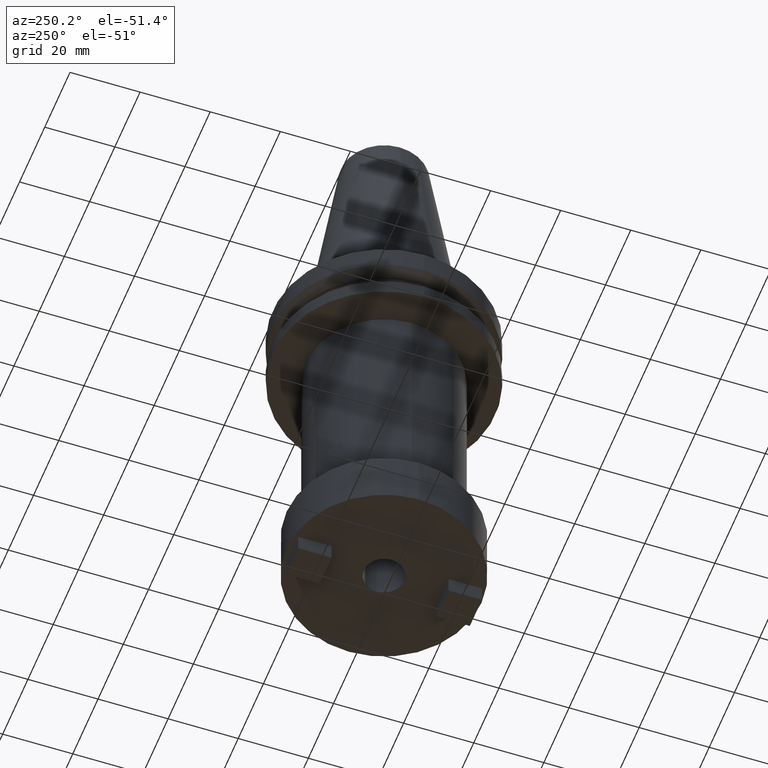
[diagram: clean part render]
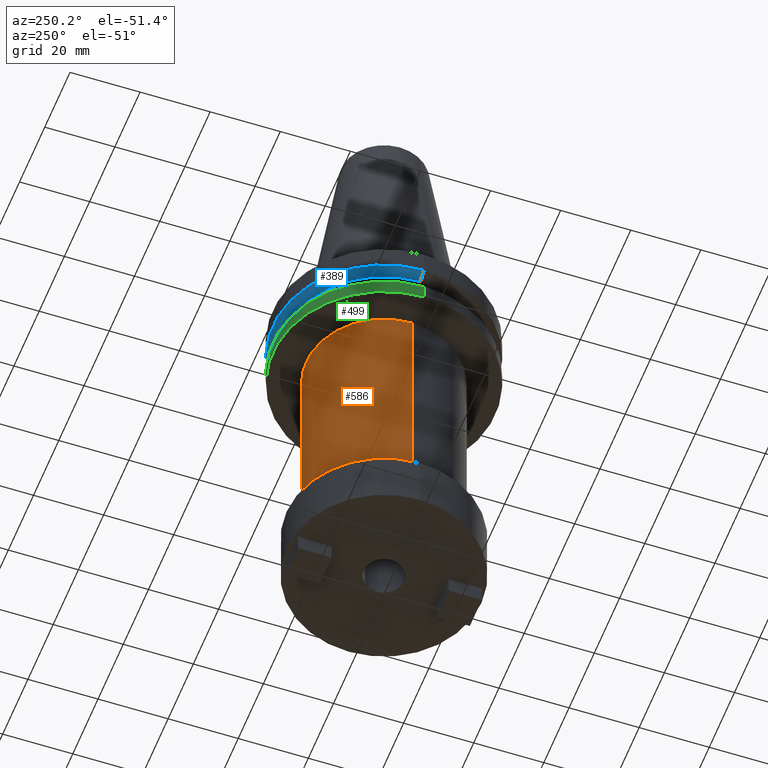
[diagram: same view with three faces highlighted in distinct colors, each labeled with its STEP entity id]
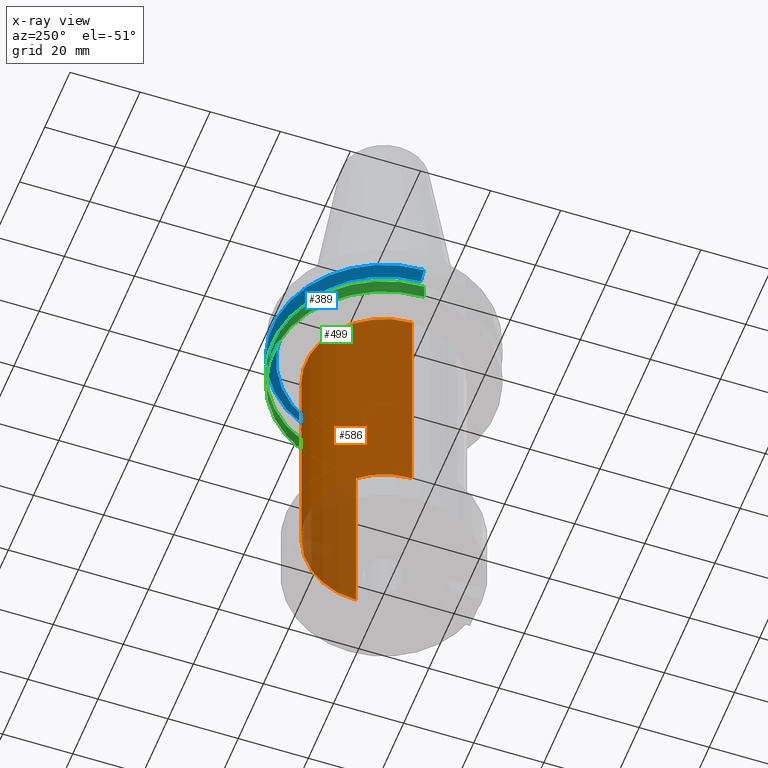
[diagram: x-ray of the same camera — body ghosted, the three highlighted faces saturated]
A machine part, auxiliary view with three faces highlighted in distinct colors.
The next image is the same camera in x-ray (body ghosted, the three faces saturated) — at least one of them is partly hidden behind the body in this view.
Their STEP definitions:

[orange] entity #586 — the highlighted cylindrical surface (partial cylindrical patch) has radius 22.225 mm, axis along (-0, -0, 1).
#17 = VERTEX_POINT ( 'NONE', #469 ) ;
#162 = EDGE_LOOP ( 'NONE', ( #192, #1071, #809, #560 ) ) ;
#179 = CIRCLE ( 'NONE', #1076, 22.22500000000000142 ) ;
#192 = ORIENTED_EDGE ( 'NONE', *, *, #556, .T. ) ;
#208 = EDGE_CURVE ( 'NONE', #1030, #864, #839, .T. ) ;
#230 = LINE ( 'NONE', #1072, #802 ) ;
#246 = CYLINDRICAL_SURFACE ( 'NONE', #280, 22.22500000000000142 ) ;
#280 = AXIS2_PLACEMENT_3D ( 'NONE', #418, #903, #909 ) ;
#318 = VERTEX_POINT ( 'NONE', #761 ) ;
#358 = CARTESIAN_POINT ( 'NONE',  ( 0.000000000000000000, 0.000000000000000000, -19.04999999999999716 ) ) ;
#418 = CARTESIAN_POINT ( 'NONE',  ( 0.000000000000000000, 0.000000000000000000, 68.25000000000000000 ) ) ;
#469 = CARTESIAN_POINT ( 'NONE',  ( 22.22500000000000142, 0.000000000000000000, -85.84999999999999432 ) ) ;
#539 = AXIS2_PLACEMENT_3D ( 'NONE', #358, #684, #853 ) ;
#541 = EDGE_CURVE ( 'NONE', #17, #1030, #230, .T. ) ;
#545 = DIRECTION ( 'NONE',  ( -0.000000000000000000, -0.000000000000000000, 1.000000000000000000 ) ) ;
#556 = EDGE_CURVE ( 'NONE', #17, #318, #179, .T. ) ;
#560 = ORIENTED_EDGE ( 'NONE', *, *, #541, .F. ) ;
#586 = ADVANCED_FACE ( 'NONE', ( #661 ), #246, .T. ) ;
#661 = FACE_OUTER_BOUND ( 'NONE', #162, .T. ) ;
#684 = DIRECTION ( 'NONE',  ( -0.000000000000000000, -0.000000000000000000, 1.000000000000000000 ) ) ;
#722 = CARTESIAN_POINT ( 'NONE',  ( -22.22500000000000142, 2.721777511104992849E-15, 68.25000000000000000 ) ) ;
#723 = VECTOR ( 'NONE', #545, 1000.000000000000000 ) ;
#726 = CARTESIAN_POINT ( 'NONE',  ( -22.22500000000000142, 2.721777511104992849E-15, -19.04999999999999716 ) ) ;
#732 = DIRECTION ( 'NONE',  ( -0.000000000000000000, -0.000000000000000000, 1.000000000000000000 ) ) ;
#745 = CARTESIAN_POINT ( 'NONE',  ( 0.000000000000000000, 0.000000000000000000, -85.84999999999999432 ) ) ;
#761 = CARTESIAN_POINT ( 'NONE',  ( -22.22500000000000142, 2.721777511104992849E-15, -85.84999999999999432 ) ) ;
#802 = VECTOR ( 'NONE', #1077, 1000.000000000000000 ) ;
#809 = ORIENTED_EDGE ( 'NONE', *, *, #208, .F. ) ;
#839 = CIRCLE ( 'NONE', #539, 22.22500000000000142 ) ;
#853 = DIRECTION ( 'NONE',  ( 1.000000000000000000, 0.000000000000000000, 0.000000000000000000 ) ) ;
#864 = VERTEX_POINT ( 'NONE', #726 ) ;
#869 = CARTESIAN_POINT ( 'NONE',  ( 22.22500000000000142, 0.000000000000000000, -19.04999999999999716 ) ) ;
#874 = LINE ( 'NONE', #722, #723 ) ;
#903 = DIRECTION ( 'NONE',  ( -0.000000000000000000, -0.000000000000000000, 1.000000000000000000 ) ) ;
#909 = DIRECTION ( 'NONE',  ( 1.000000000000000000, 0.000000000000000000, 0.000000000000000000 ) ) ;
#999 = DIRECTION ( 'NONE',  ( 1.000000000000000000, 0.000000000000000000, 0.000000000000000000 ) ) ;
#1000 = EDGE_CURVE ( 'NONE', #318, #864, #874, .T. ) ;
#1030 = VERTEX_POINT ( 'NONE', #869 ) ;
#1071 = ORIENTED_EDGE ( 'NONE', *, *, #1000, .T. ) ;
#1072 = CARTESIAN_POINT ( 'NONE',  ( 22.22500000000000142, 0.000000000000000000, 68.25000000000000000 ) ) ;
#1076 = AXIS2_PLACEMENT_3D ( 'NONE', #745, #732, #999 ) ;
#1077 = DIRECTION ( 'NONE',  ( -0.000000000000000000, -0.000000000000000000, 1.000000000000000000 ) ) ;

[blue] entity #389 — the highlighted conical surface has half-angle 60 deg.
#34 = DIRECTION ( 'NONE',  ( 1.000000000000000000, 0.000000000000000000, 0.000000000000000000 ) ) ;
#55 = CARTESIAN_POINT ( 'NONE',  ( -31.75000000000000000, 3.888253587292846476E-15, -7.605276606597335842 ) ) ;
#72 = VECTOR ( 'NONE', #433, 1000.000000000000000 ) ;
#99 = CARTESIAN_POINT ( 'NONE',  ( 28.97919780457007732, 0.000000000000000000, -9.205000000000005400 ) ) ;
#104 = ORIENTED_EDGE ( 'NONE', *, *, #594, .T. ) ;
#161 = DIRECTION ( 'NONE',  ( -0.000000000000000000, -0.000000000000000000, 1.000000000000000000 ) ) ;
#174 = LINE ( 'NONE', #518, #72 ) ;
#193 = CARTESIAN_POINT ( 'NONE',  ( 31.75000000000000000, 0.000000000000000000, -7.605276606597335842 ) ) ;
#204 = DIRECTION ( 'NONE',  ( 1.000000000000000000, 0.000000000000000000, 0.000000000000000000 ) ) ;
#277 = VERTEX_POINT ( 'NONE', #193 ) ;
#282 = LINE ( 'NONE', #614, #615 ) ;
#329 = ORIENTED_EDGE ( 'NONE', *, *, #877, .F. ) ;
#333 = AXIS2_PLACEMENT_3D ( 'NONE', #788, #451, #34 ) ;
#369 = AXIS2_PLACEMENT_3D ( 'NONE', #913, #161, #502 ) ;
#384 = AXIS2_PLACEMENT_3D ( 'NONE', #794, #624, #204 ) ;
#389 = ADVANCED_FACE ( 'NONE', ( #474 ), #1042, .T. ) ;
#433 = DIRECTION ( 'NONE',  ( -0.8660254037844389297, 1.060575238724907285E-16, 0.4999999999999995004 ) ) ;
#451 = DIRECTION ( 'NONE',  ( -0.000000000000000000, -0.000000000000000000, 1.000000000000000000 ) ) ;
#474 = FACE_OUTER_BOUND ( 'NONE', #929, .T. ) ;
#484 = EDGE_CURVE ( 'NONE', #277, #1012, #1008, .T. ) ;
#502 = DIRECTION ( 'NONE',  ( 1.000000000000000000, 0.000000000000000000, 0.000000000000000000 ) ) ;
#518 = CARTESIAN_POINT ( 'NONE',  ( -28.97919780457007732, 3.548928183322474856E-15, -9.205000000000005400 ) ) ;
#594 = EDGE_CURVE ( 'NONE', #676, #718, #758, .T. ) ;
#614 = CARTESIAN_POINT ( 'NONE',  ( 28.97919780457007732, 0.000000000000000000, -9.205000000000005400 ) ) ;
#615 = VECTOR ( 'NONE', #618, 1000.000000000000000 ) ;
#618 = DIRECTION ( 'NONE',  ( 0.8660254037844389297, 0.000000000000000000, 0.4999999999999995004 ) ) ;
#624 = DIRECTION ( 'NONE',  ( -0.000000000000000000, -0.000000000000000000, 1.000000000000000000 ) ) ;
#676 = VERTEX_POINT ( 'NONE', #99 ) ;
#677 = CARTESIAN_POINT ( 'NONE',  ( -28.97919780457007732, 3.718590885307660666E-15, -9.205000000000005400 ) ) ;
#718 = VERTEX_POINT ( 'NONE', #677 ) ;
#739 = EDGE_CURVE ( 'NONE', #718, #1012, #174, .T. ) ;
#758 = CIRCLE ( 'NONE', #369, 28.97919780457007732 ) ;
#788 = CARTESIAN_POINT ( 'NONE',  ( 0.000000000000000000, 0.000000000000000000, -9.205000000000005400 ) ) ;
#794 = CARTESIAN_POINT ( 'NONE',  ( 0.000000000000000000, 0.000000000000000000, -7.605276606597335842 ) ) ;
#877 = EDGE_CURVE ( 'NONE', #676, #277, #282, .T. ) ;
#913 = CARTESIAN_POINT ( 'NONE',  ( 0.000000000000000000, 0.000000000000000000, -9.205000000000005400 ) ) ;
#924 = ORIENTED_EDGE ( 'NONE', *, *, #484, .F. ) ;
#929 = EDGE_LOOP ( 'NONE', ( #104, #945, #924, #329 ) ) ;
#945 = ORIENTED_EDGE ( 'NONE', *, *, #739, .T. ) ;
#1008 = CIRCLE ( 'NONE', #384, 31.75000000000000000 ) ;
#1012 = VERTEX_POINT ( 'NONE', #55 ) ;
#1042 = CONICAL_SURFACE ( 'NONE', #333, 28.97919780457007732, 1.047197551196598297 ) ;

[green] entity #499 — the highlighted cylindrical surface (partial cylindrical patch) has radius 31.75 mm, axis along (-0, -0, 1).
#7 = CARTESIAN_POINT ( 'NONE',  ( -31.75000000000000000, 3.888253587292846476E-15, -14.65472339340266572 ) ) ;
#84 = CARTESIAN_POINT ( 'NONE',  ( -31.74999999999999289, 3.888253587292845687E-15, -19.04999999999999716 ) ) ;
#86 = CIRCLE ( 'NONE', #702, 31.75000000000000000 ) ;
#91 = DIRECTION ( 'NONE',  ( -0.000000000000000000, -0.000000000000000000, 1.000000000000000000 ) ) ;
#120 = CARTESIAN_POINT ( 'NONE',  ( 31.74999999999999289, 0.000000000000000000, -19.04999999999999716 ) ) ;
#131 = DIRECTION ( 'NONE',  ( -0.000000000000000000, -0.000000000000000000, 1.000000000000000000 ) ) ;
#141 = CARTESIAN_POINT ( 'NONE',  ( 31.75000000000000000, 0.000000000000000000, -14.65472339340266572 ) ) ;
#185 = DIRECTION ( 'NONE',  ( -0.000000000000000000, -0.000000000000000000, 1.000000000000000000 ) ) ;
#212 = VERTEX_POINT ( 'NONE', #7 ) ;
#261 = ORIENTED_EDGE ( 'NONE', *, *, #448, .F. ) ;
#274 = CARTESIAN_POINT ( 'NONE',  ( 0.000000000000000000, 0.000000000000000000, -14.65472339340266572 ) ) ;
#312 = ORIENTED_EDGE ( 'NONE', *, *, #654, .F. ) ;
#337 = DIRECTION ( 'NONE',  ( 1.000000000000000000, 0.000000000000000000, 0.000000000000000000 ) ) ;
#397 = FACE_OUTER_BOUND ( 'NONE', #695, .T. ) ;
#403 = CARTESIAN_POINT ( 'NONE',  ( 0.000000000000000000, 0.000000000000000000, -19.04999999999999716 ) ) ;
#404 = VECTOR ( 'NONE', #131, 1000.000000000000000 ) ;
#447 = VERTEX_POINT ( 'NONE', #120 ) ;
#448 = EDGE_CURVE ( 'NONE', #447, #595, #709, .T. ) ;
#492 = CARTESIAN_POINT ( 'NONE',  ( 0.000000000000000000, 0.000000000000000000, 68.25000000000000000 ) ) ;
#499 = ADVANCED_FACE ( 'NONE', ( #397 ), #837, .T. ) ;
#523 = EDGE_CURVE ( 'NONE', #447, #705, #557, .T. ) ;
#557 = CIRCLE ( 'NONE', #576, 31.74999999999999289 ) ;
#576 = AXIS2_PLACEMENT_3D ( 'NONE', #403, #1059, #995 ) ;
#595 = VERTEX_POINT ( 'NONE', #141 ) ;
#602 = CARTESIAN_POINT ( 'NONE',  ( -31.75000000000000000, 3.888253587292846476E-15, 68.25000000000000000 ) ) ;
#654 = EDGE_CURVE ( 'NONE', #595, #212, #86, .T. ) ;
#667 = EDGE_CURVE ( 'NONE', #705, #212, #926, .T. ) ;
#695 = EDGE_LOOP ( 'NONE', ( #784, #849, #312, #261 ) ) ;
#702 = AXIS2_PLACEMENT_3D ( 'NONE', #274, #91, #1022 ) ;
#705 = VERTEX_POINT ( 'NONE', #84 ) ;
#709 = LINE ( 'NONE', #714, #404 ) ;
#714 = CARTESIAN_POINT ( 'NONE',  ( 31.75000000000000000, 0.000000000000000000, 68.25000000000000000 ) ) ;
#742 = VECTOR ( 'NONE', #185, 1000.000000000000000 ) ;
#784 = ORIENTED_EDGE ( 'NONE', *, *, #523, .T. ) ;
#827 = DIRECTION ( 'NONE',  ( -0.000000000000000000, -0.000000000000000000, 1.000000000000000000 ) ) ;
#837 = CYLINDRICAL_SURFACE ( 'NONE', #989, 31.75000000000000000 ) ;
#849 = ORIENTED_EDGE ( 'NONE', *, *, #667, .T. ) ;
#926 = LINE ( 'NONE', #602, #742 ) ;
#989 = AXIS2_PLACEMENT_3D ( 'NONE', #492, #827, #337 ) ;
#995 = DIRECTION ( 'NONE',  ( 1.000000000000000000, 0.000000000000000000, 0.000000000000000000 ) ) ;
#1022 = DIRECTION ( 'NONE',  ( 1.000000000000000000, 0.000000000000000000, 0.000000000000000000 ) ) ;
#1059 = DIRECTION ( 'NONE',  ( -0.000000000000000000, -0.000000000000000000, 1.000000000000000000 ) ) ;